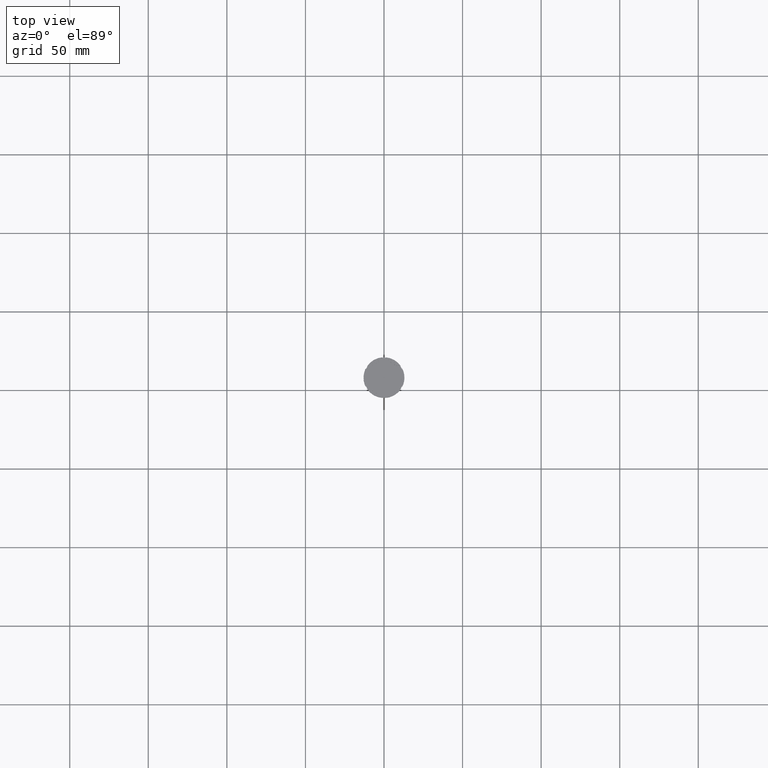
[diagram: clean part render]
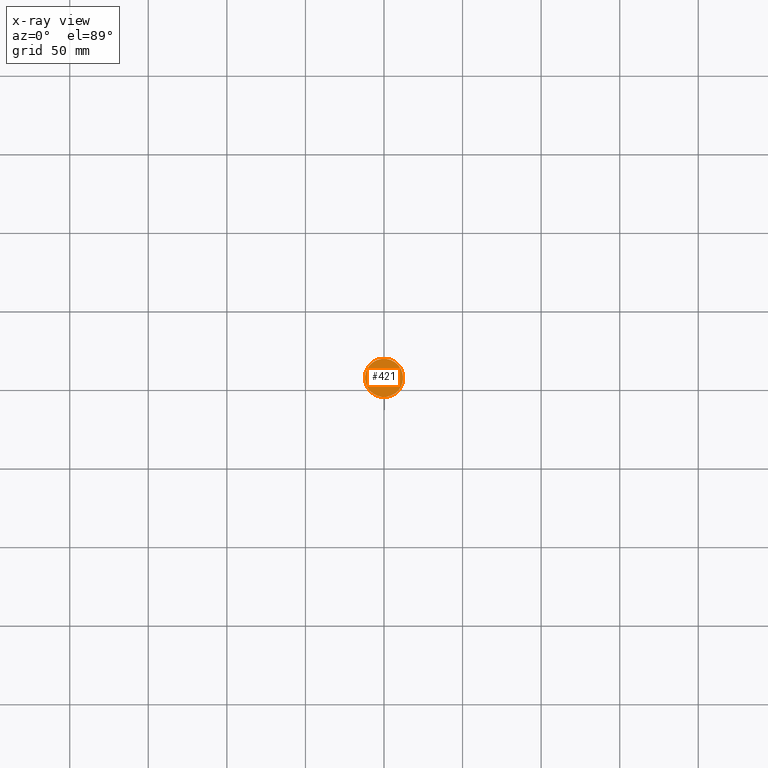
[diagram: x-ray — body ghosted, one internal face saturated and labeled with its STEP entity id]
A machine part, top view, then the same camera in x-ray: the body is ghosted and one INTERNAL B-rep face — a face not visible from any outside direction — is saturated and labeled: STEP entity #421.
In plain terms, the highlighted planar face has unit normal (0, 0, -1).
Its self-contained STEP definition (entity closure, byte-faithful):
#25 = VERTEX_POINT ( 'NONE', #2807 ) ;
#421 = ADVANCED_FACE ( 'NONE', ( #1889 ), #1901, .F. ) ;
#518 = DIRECTION ( 'NONE',  ( -1.000000000000000000, 0.000000000000000000, 0.000000000000000000 ) ) ;
#534 = AXIS2_PLACEMENT_3D ( 'NONE', #1517, #729, #518 ) ;
#576 = CARTESIAN_POINT ( 'NONE',  ( 0.000000000000000000, 0.000000000000000000, -12.00000000000000000 ) ) ;
#655 = EDGE_CURVE ( 'NONE', #2252, #25, #1188, .T. ) ;
#671 = CIRCLE ( 'NONE', #761, 12.20000000000000639 ) ;
#729 = DIRECTION ( 'NONE',  ( -0.000000000000000000, -0.000000000000000000, 1.000000000000000000 ) ) ;
#761 = AXIS2_PLACEMENT_3D ( 'NONE', #1433, #778, #1662 ) ;
#778 = DIRECTION ( 'NONE',  ( -0.000000000000000000, -0.000000000000000000, 1.000000000000000000 ) ) ;
#1188 = CIRCLE ( 'NONE', #534, 12.20000000000000639 ) ;
#1433 = CARTESIAN_POINT ( 'NONE',  ( 0.000000000000000000, 0.000000000000000000, -12.00000000000000000 ) ) ;
#1517 = CARTESIAN_POINT ( 'NONE',  ( 0.000000000000000000, 0.000000000000000000, -12.00000000000000000 ) ) ;
#1518 = CARTESIAN_POINT ( 'NONE',  ( 12.20000000000000639, 1.512438796946981880E-15, -12.00000000000000000 ) ) ;
#1661 = DIRECTION ( 'NONE',  ( 0.000000000000000000, 0.000000000000000000, -1.000000000000000000 ) ) ;
#1662 = DIRECTION ( 'NONE',  ( -1.000000000000000000, 0.000000000000000000, 0.000000000000000000 ) ) ;
#1711 = EDGE_LOOP ( 'NONE', ( #1719, #2403 ) ) ;
#1719 = ORIENTED_EDGE ( 'NONE', *, *, #2222, .T. ) ;
#1889 = FACE_OUTER_BOUND ( 'NONE', #1711, .T. ) ;
#1901 = PLANE ( 'NONE',  #2386 ) ;
#2222 = EDGE_CURVE ( 'NONE', #25, #2252, #671, .T. ) ;
#2252 = VERTEX_POINT ( 'NONE', #1518 ) ;
#2386 = AXIS2_PLACEMENT_3D ( 'NONE', #576, #1661, #2598 ) ;
#2403 = ORIENTED_EDGE ( 'NONE', *, *, #655, .T. ) ;
#2598 = DIRECTION ( 'NONE',  ( -1.000000000000000000, 0.000000000000000000, -0.000000000000000000 ) ) ;
#2807 = CARTESIAN_POINT ( 'NONE',  ( -12.20000000000000639, 0.000000000000000000, -12.00000000000000000 ) ) ;